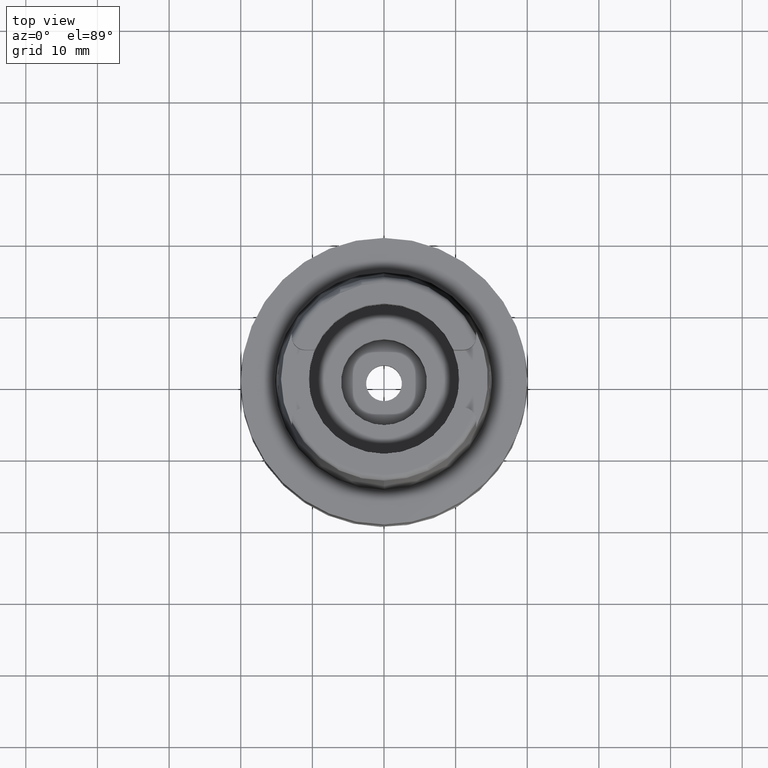
[diagram: clean part render]
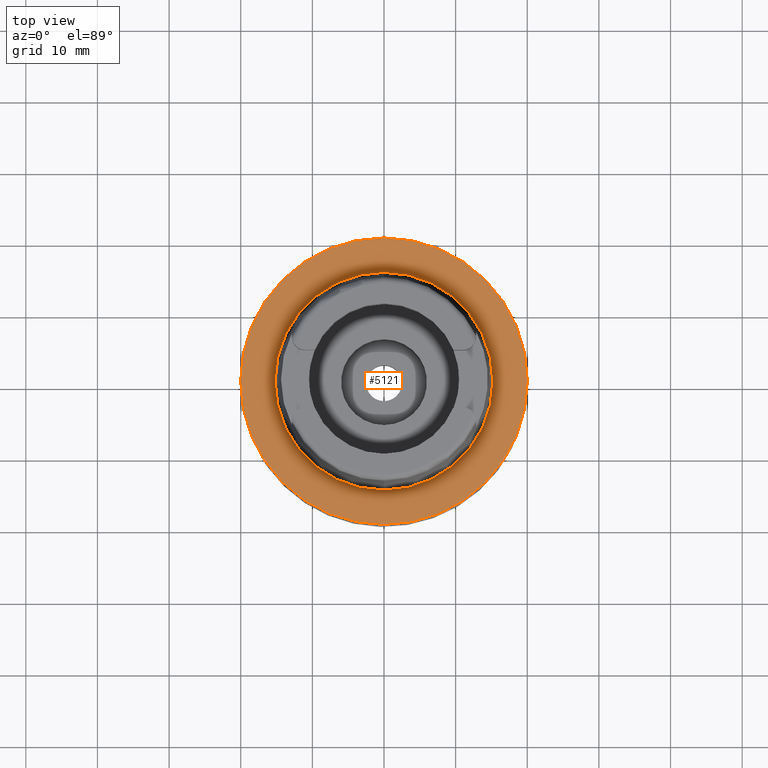
[diagram: same view with one face highlighted and labeled with its STEP entity id]
A machine part, top view. The second image highlights one B-rep face of the part: STEP entity #5121.
In plain terms, the highlighted planar face has unit normal (0, 0, 1).
Its self-contained STEP definition (entity closure, byte-faithful):
#15 = DIRECTION ( 'NONE',  ( 0.0000000000000000000, -1.000000000000000000, 0.0000000000000000000 ) ) ;
#110 = AXIS2_PLACEMENT_3D ( 'NONE', #3921, #2172, #3839 ) ;
#111 = AXIS2_PLACEMENT_3D ( 'NONE', #5351, #436, #1183 ) ;
#162 = CARTESIAN_POINT ( 'NONE',  ( 0.0000000000000000000, 20.00000000000000000, 6.631732200427999741E-14 ) ) ;
#198 = CIRCLE ( 'NONE', #5027, 20.00000000000000000 ) ;
#436 = DIRECTION ( 'NONE',  ( 0.0000000000000000000, 0.0000000000000000000, 1.000000000000000000 ) ) ;
#445 = AXIS2_PLACEMENT_3D ( 'NONE', #1782, #862, #15 ) ;
#493 = PLANE ( 'NONE',  #110 ) ;
#574 = FACE_BOUND ( 'NONE', #4003, .T. ) ;
#685 = EDGE_LOOP ( 'NONE', ( #3005, #1553 ) ) ;
#804 = EDGE_CURVE ( 'NONE', #3834, #2711, #2305, .T. ) ;
#862 = DIRECTION ( 'NONE',  ( 0.0000000000000000000, 0.0000000000000000000, -1.000000000000000000 ) ) ;
#883 = EDGE_CURVE ( 'NONE', #2711, #3834, #1691, .T. ) ;
#1103 = CARTESIAN_POINT ( 'NONE',  ( 0.0000000000000000000, 0.0000000000000000000, 7.958078640512999903E-13 ) ) ;
#1111 = EDGE_CURVE ( 'NONE', #5131, #4973, #198, .T. ) ;
#1183 = DIRECTION ( 'NONE',  ( 0.0000000000000000000, 1.000000000000000000, 0.0000000000000000000 ) ) ;
#1553 = ORIENTED_EDGE ( 'NONE', *, *, #4150, .F. ) ;
#1691 = CIRCLE ( 'NONE', #111, 15.20000663301000010 ) ;
#1782 = CARTESIAN_POINT ( 'NONE',  ( 0.0000000000000000000, 0.0000000000000000000, 1.278976924367999843E-13 ) ) ;
#2172 = DIRECTION ( 'NONE',  ( 0.0000000000000000000, 0.0000000000000000000, 1.000000000000000000 ) ) ;
#2194 = DIRECTION ( 'NONE',  ( 0.0000000000000000000, 0.0000000000000000000, -1.000000000000000000 ) ) ;
#2219 = ORIENTED_EDGE ( 'NONE', *, *, #883, .F. ) ;
#2305 = CIRCLE ( 'NONE', #5369, 15.20000663301000010 ) ;
#2385 = DIRECTION ( 'NONE',  ( 0.0000000000000000000, 0.0000000000000000000, 1.000000000000000000 ) ) ;
#2539 = CIRCLE ( 'NONE', #445, 20.00000000000000000 ) ;
#2618 = DIRECTION ( 'NONE',  ( 0.0000000000000000000, 1.000000000000000000, 0.0000000000000000000 ) ) ;
#2711 = VERTEX_POINT ( 'NONE', #2774 ) ;
#2774 = CARTESIAN_POINT ( 'NONE',  ( 0.0000000000000000000, 15.20000663301000010, 7.958078640512999903E-13 ) ) ;
#2947 = CARTESIAN_POINT ( 'NONE',  ( 0.0000000000000000000, -15.20000663301000010, 4.547473508865000658E-13 ) ) ;
#3005 = ORIENTED_EDGE ( 'NONE', *, *, #1111, .F. ) ;
#3340 = ORIENTED_EDGE ( 'NONE', *, *, #804, .F. ) ;
#3735 = CARTESIAN_POINT ( 'NONE',  ( 0.0000000000000000000, -20.00000000000000000, 1.278976924367999843E-13 ) ) ;
#3834 = VERTEX_POINT ( 'NONE', #2947 ) ;
#3839 = DIRECTION ( 'NONE',  ( 1.000000000000000000, 0.0000000000000000000, 0.0000000000000000000 ) ) ;
#3921 = CARTESIAN_POINT ( 'NONE',  ( 0.0000000000000000000, 0.0000000000000000000, 0.0000000000000000000 ) ) ;
#4003 = EDGE_LOOP ( 'NONE', ( #2219, #3340 ) ) ;
#4053 = DIRECTION ( 'NONE',  ( 0.0000000000000000000, -1.000000000000000000, 0.0000000000000000000 ) ) ;
#4150 = EDGE_CURVE ( 'NONE', #4973, #5131, #2539, .T. ) ;
#4348 = FACE_OUTER_BOUND ( 'NONE', #685, .T. ) ;
#4717 = CARTESIAN_POINT ( 'NONE',  ( 0.0000000000000000000, 0.0000000000000000000, 1.278976924367999843E-13 ) ) ;
#4973 = VERTEX_POINT ( 'NONE', #3735 ) ;
#5027 = AXIS2_PLACEMENT_3D ( 'NONE', #4717, #2194, #2618 ) ;
#5121 = ADVANCED_FACE ( 'NONE', ( #4348, #574 ), #493, .T. ) ;
#5131 = VERTEX_POINT ( 'NONE', #162 ) ;
#5351 = CARTESIAN_POINT ( 'NONE',  ( 0.0000000000000000000, 0.0000000000000000000, 7.958078640512999903E-13 ) ) ;
#5369 = AXIS2_PLACEMENT_3D ( 'NONE', #1103, #2385, #4053 ) ;